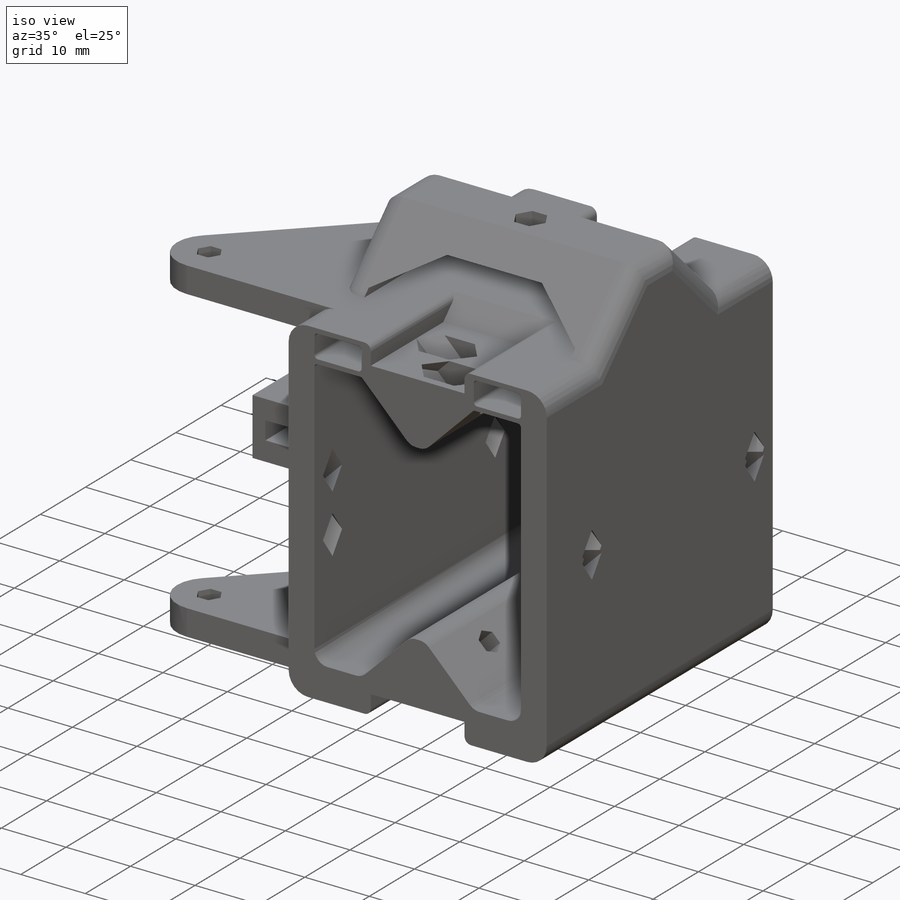
[diagram: iso view]
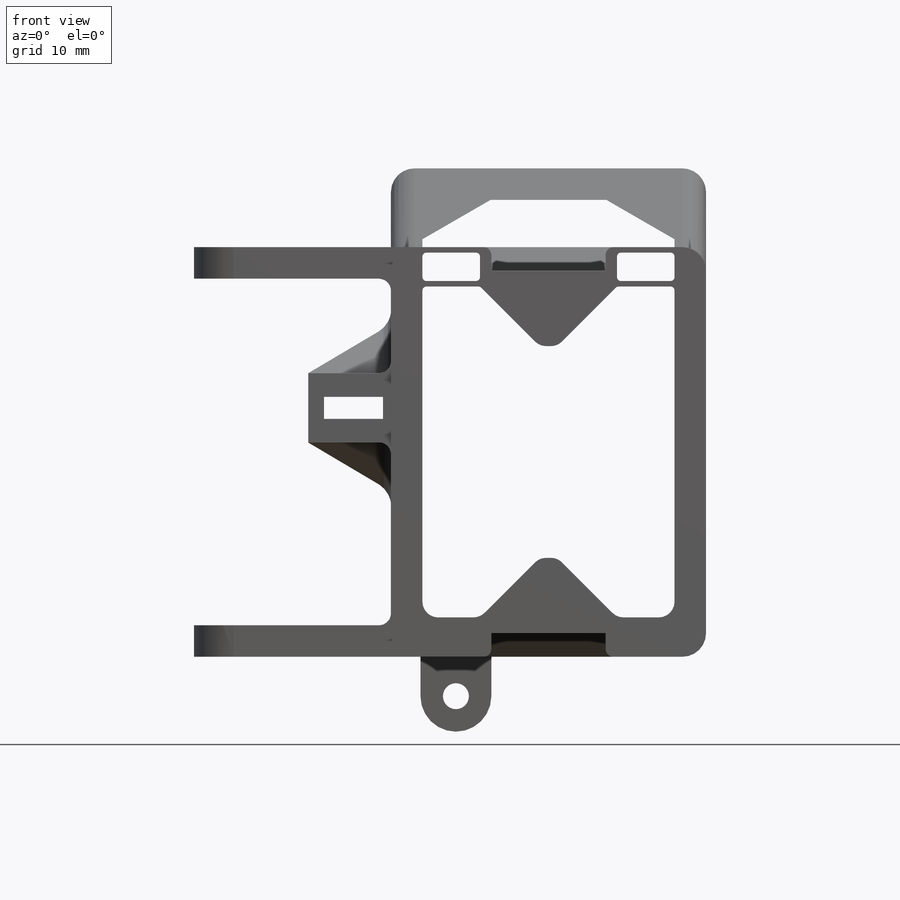
[diagram: front view]
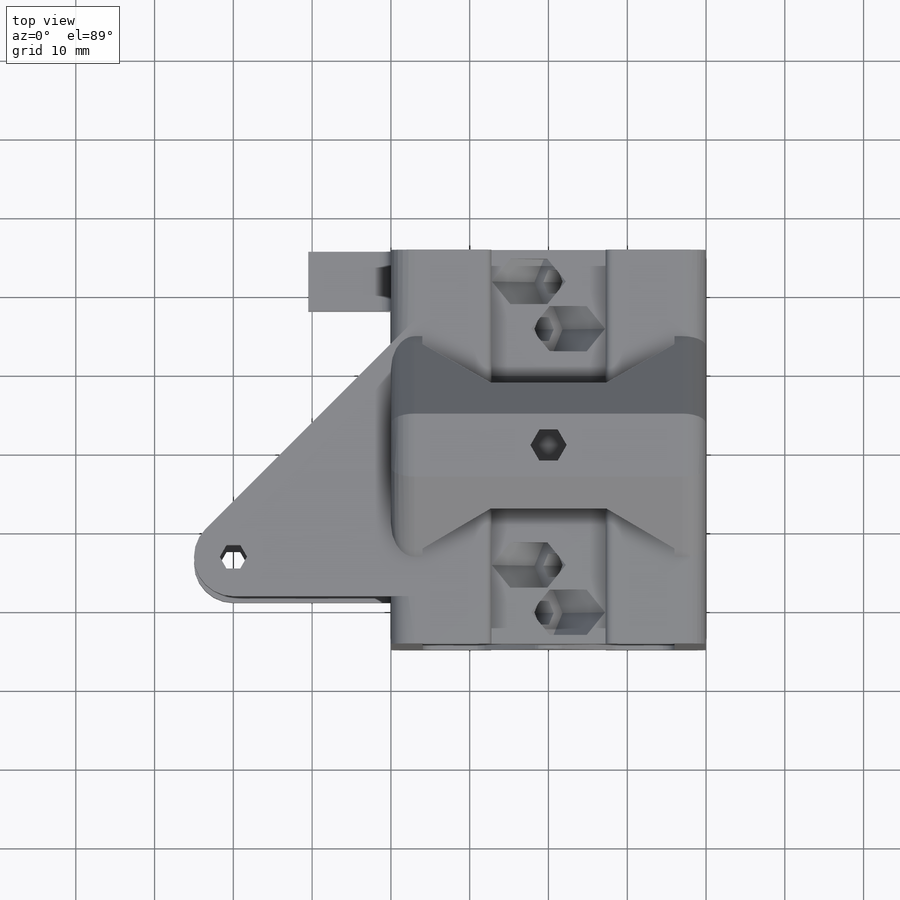
[diagram: top view]
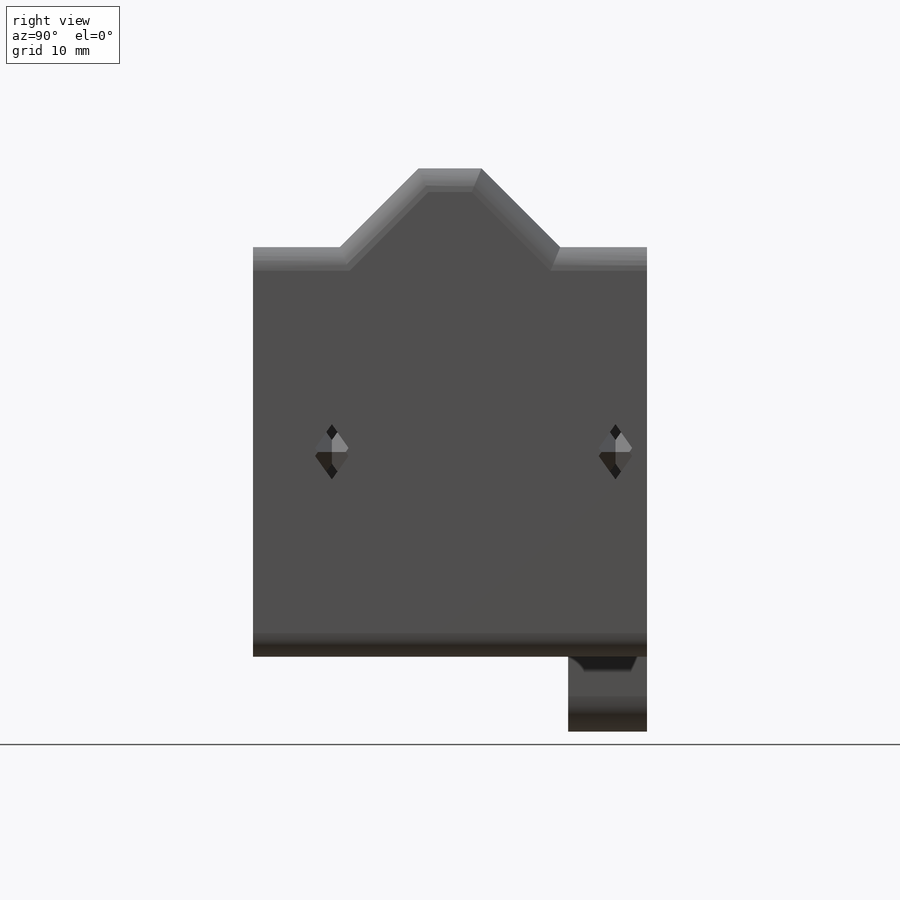
[diagram: right view]
SOLIDWORKS PART (.sldprt)
format: sldprt  version: not decoded by parser v0  size: 1,732,608 bytes
history: native  units: mm
features: sketch x17, cut_extrude x8, extrude x7, fillet x6, mirror x4, pattern_circular x4, plane x2, material x1, chamfer x1 (+11 scaffold rows collapsed)
feature tree (61):
  scaffold x11  (default folders/planes/origin — collapsed)
  material  "Material <not specified>"
  sketch  "Sketch2"  dims[c1.D1=~14.405667mm c1.D2=~15.725853mm c2.D1=19.0mm c2.D2=4.0mm c2.D3=10.0mm c3.D2=10.0mm c3.D3=4.0mm c3.D4=4.0mm c3.D5=0.7mm c3.D6=0.0mm c3.D7=32.0mm c3.D8=21.0mm c3.D9=~60.616863mm c3.D10=~41.499237mm c4.D9=4.0mm c4.D10=5.0mm c4.D11=6.0mm c4.D12=6.0mm c4.D13=5.0mm c4.D14=5.0mm c4.D6=~4.957554mm c5.D11=~1.773495mm c5.D6=~5.146839mm c6.D11=~1.777344mm c6.D6=6.0mm c7.D11=2.0mm c7.D12=25.0mm]
  extrude  "Boss-Extrude1"  Depth=50mm
  sketch  "Sketch6"  dims[c1.D1=~16.807607mm c1.D2=~17.700353mm c2.D1=15.0mm c2.D2=14.5mm]
  cut_extrude  "Cut-Extrude2"  Depth=2mm
  mirror  "Mirror12"
  chamfer  "Chamfer2"  Distance=4mm Angle=45deg
  sketch  "Sketch18"  dims[D1=~3.168345mm D2=4.0mm D3=10.0mm D4=15.0mm]
  cut_extrude  "Cut-Extrude9"  Depth=12mm
  sketch  "Sketch5"  dims[D1=5.75mm D2=~3.175426mm]
  cut_extrude  "Cut-Extrude1"  Depth=5mm
  sketch  "Sketch8"  dims[D1=4.0mm D2=3.0mm D3=~0.39529mm]
  cut_extrude  "Cut-Extrude5"  [1 undecoded]
  pattern_circular  "CirPattern1"  Count=2 Angle=360deg
  mirror  "Mirror13"
  sketch  "Sketch9"  dims[c1.D1=~9.724216mm c2.D1=45.0deg c2.D2=10.0mm c2.D3=8.0mm]
  extrude  "Boss-Extrude2"  [1 undecoded]
  sketch  "Sketch11"  dims[c1.D1=~6.705347mm c1.D2=~32.312689mm c2.D1=~7.019989mm c3.D1=30.0deg c3.D2=4.0mm c3.D3=1.0mm]
  cut_extrude  "Cut-Extrude6"  [1 undecoded]
  sketch  "Sketch12"  dims[D1=4.0mm]
  cut_extrude  "Cut-Extrude7"  [1 undecoded]
  fillet  "Fillet22"  Radius=3mm
  sketch  "Sketch16"  dims[c1.D4=3.0mm c1.D7=~6.193599mm c1.D2=5.0mm c1.D1=~8.026406mm c2.D1=45.0deg c2.D2=2.0mm c2.D3=12.0mm c2.D4=3.0mm c2.D5=4.0mm c2.D6=17.0mm c2.D7=~0.324426mm c3.D3=14.0mm c3.D5=17.0mm c3.D6=14.0mm c4.D3=40.0mm]
  extrude  "Boss-Extrude4"  Depth=4mm
  mirror  "Mirror14"
  fillet  "Fillet21"  Radius=2mm
  fillet  "Fillet23"  Radius=1mm
  sketch  "Sketch15"  dims[c1.D1=~4.226507mm c1.D2=0.5mm c1.D3=8.0mm c1.D4=~29.620895mm c2.D1=~3.856447mm c2.D2=~7.196406mm c3.D1=0.7mm c3.D2=0.7mm c3.D3=8.0mm]
  cut_extrude  "Cut-Extrude8"  [1 undecoded]
  pattern_circular  "Axis2"  [2 undecoded]
  pattern_circular  "Axis3"  [2 undecoded]
  sketch  "Sketch21"  dims[c1.D1=~9.993868mm c1.D2=~9.509375mm c2.D1=3.2732mm c2.D2=~6.089674mm c3.D1=2.8mm c3.D2=7.5mm c3.D3=1.0mm c3.D4=2.0mm c3.D5=3.0mm c3.D6=3.0mm c3.D7=7.0mm]
  extrude  "Boss-Extrude7"  Depth=7.5mm
  extrude  "Boss-Extrude8"  [1 undecoded]
  sketch  "Sketch21<2>"  dims[D1=8.0mm D19=35.0mm]
  plane  "Plane1"
  sketch  "Sketch24"  dims[c1.D1=~11.510511mm c2.D1=30.0deg]
  extrude  "Boss-Extrude10"  Depth=1.5mm
  plane  "Plane2"
  mirror  "Mirror15"
  fillet  "Fillet24"  Radius=0.5mm
  sketch  "Sketch25"  dims[c1.D1=6.5mm c2.D1=45.0deg c2.D2=~5.797614mm]
  cut_extrude  "Cut-Extrude10"  [1 undecoded]
  fillet  "Fillet26"  Radius=2mm
  fillet  "Fillet27"  Radius=1.5mm
  sketch  "Sketch13"  dims[D2=~0.036765mm D1=3.0mm]
  sketch  "Sketch14"  dims[D2=~0.080712mm D1=0.7mm]
  pattern_circular  "Axis4"  [2 undecoded]
  sketch  "Sketch26"  dims[c1.D1=3.3mm c1.D2=4.5mm c2.D1=~14.944692mm c2.D2=~15.338302mm c3.D1=~8.08551mm c3.D2=~8.146057mm c4.D1=~0.408776mm c4.D3=31.0mm]
  extrude  "Boss-Extrude11"  Depth=10mm
decode coverage: 33 of 47 modeling features carry decoded parameters
note: ~ marks probable driven/reference dimensions
note: 13 parameter values undecoded
summary: no parameter record found for 7 features
note: suppression state not decoded; provenance and decode notes live in map.json
